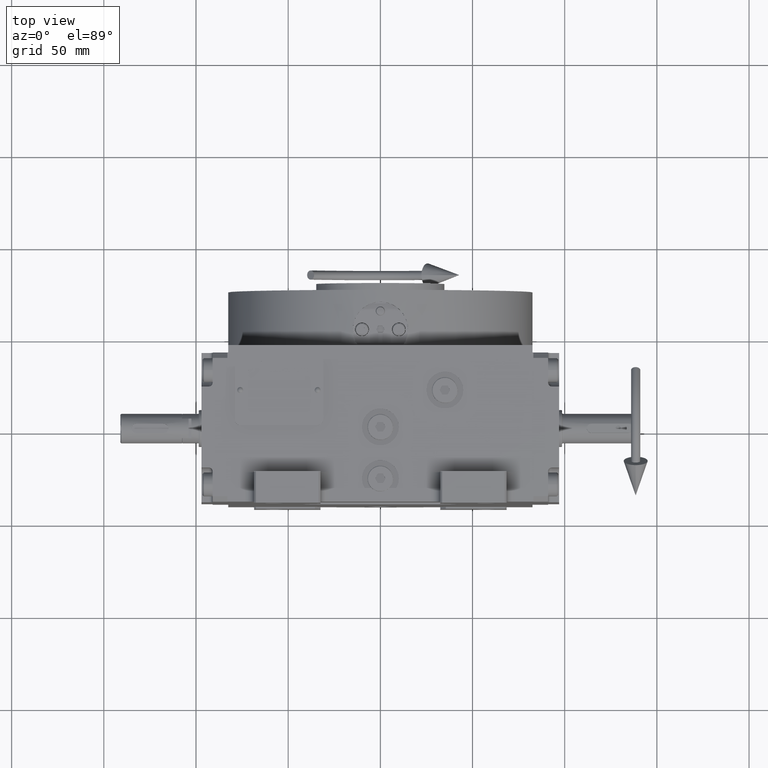
[diagram: clean part render]
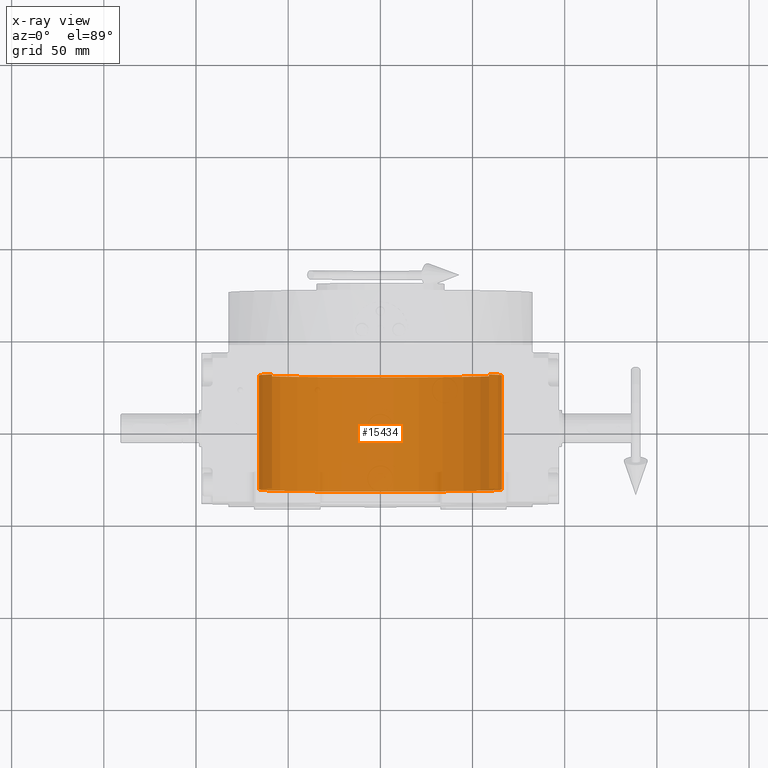
[diagram: x-ray — body ghosted, one internal face saturated and labeled with its STEP entity id]
A machine part, top view, then the same camera in x-ray: the body is ghosted and one INTERNAL B-rep face — a face not visible from any outside direction — is saturated and labeled: STEP entity #15434.
In plain terms, the highlighted cylindrical surface (partial cylindrical patch) has radius 66 mm, axis along (0, 1, 0).
Its self-contained STEP definition (entity closure, byte-faithful):
#1021 = VERTEX_POINT ( 'NONE', #10698 ) ;
#1100 = DIRECTION ( 'NONE',  ( 0.000000000000000000, 0.000000000000000000, 1.000000000000000000 ) ) ;
#1101 = CARTESIAN_POINT ( 'NONE',  ( 58.78775382679628336, 98.15000000000000568, 30.00000000000000000 ) ) ;
#2421 = EDGE_CURVE ( 'NONE', #62693, #1021, #29062, .T. ) ;
#2488 = EDGE_CURVE ( 'NONE', #10325, #1021, #4385, .T. ) ;
#3467 = CYLINDRICAL_SURFACE ( 'NONE', #45210, 66.00000000000000000 ) ;
#3875 = CARTESIAN_POINT ( 'NONE',  ( -58.78775382679628336, 98.15000000000000568, 30.00000000000000000 ) ) ;
#4385 = CIRCLE ( 'NONE', #45647, 66.00000000000000000 ) ;
#9567 = EDGE_LOOP ( 'NONE', ( #28745, #16947, #43727, #17152 ) ) ;
#10325 = VERTEX_POINT ( 'NONE', #40580 ) ;
#10471 = DIRECTION ( 'NONE',  ( -0.000000000000000000, 1.000000000000000000, -0.000000000000000000 ) ) ;
#10698 = CARTESIAN_POINT ( 'NONE',  ( -58.78775382679628336, -31.99999999999998579, 30.00000000000000000 ) ) ;
#11107 = CARTESIAN_POINT ( 'NONE',  ( 0.000000000000000000, 30.00000000000001421, 0.000000000000000000 ) ) ;
#11846 = EDGE_CURVE ( 'NONE', #30197, #62693, #19164, .T. ) ;
#12060 = CARTESIAN_POINT ( 'NONE',  ( -58.78775382679628336, 30.00000000000001421, 30.00000000000000000 ) ) ;
#15434 = ADVANCED_FACE ( 'NONE', ( #47379 ), #3467, .F. ) ;
#16947 = ORIENTED_EDGE ( 'NONE', *, *, #2488, .F. ) ;
#17152 = ORIENTED_EDGE ( 'NONE', *, *, #11846, .T. ) ;
#17216 = DIRECTION ( 'NONE',  ( -0.000000000000000000, 1.000000000000000000, -0.000000000000000000 ) ) ;
#17978 = CARTESIAN_POINT ( 'NONE',  ( 0.000000000000000000, 98.15000000000000568, 0.000000000000000000 ) ) ;
#19164 = CIRCLE ( 'NONE', #39807, 66.00000000000000000 ) ;
#28738 = CARTESIAN_POINT ( 'NONE',  ( 58.78775382679628336, 30.00000000000001421, 30.00000000000000000 ) ) ;
#28745 = ORIENTED_EDGE ( 'NONE', *, *, #2421, .T. ) ;
#29062 = LINE ( 'NONE', #3875, #29132 ) ;
#29132 = VECTOR ( 'NONE', #63006, 1000.000000000000000 ) ;
#30197 = VERTEX_POINT ( 'NONE', #28738 ) ;
#32069 = DIRECTION ( 'NONE',  ( 0.000000000000000000, 0.000000000000000000, 1.000000000000000000 ) ) ;
#35969 = DIRECTION ( 'NONE',  ( -0.000000000000000000, 1.000000000000000000, -0.000000000000000000 ) ) ;
#39807 = AXIS2_PLACEMENT_3D ( 'NONE', #11107, #10471, #1100 ) ;
#40580 = CARTESIAN_POINT ( 'NONE',  ( 58.78775382679628336, -31.99999999999998579, 30.00000000000000000 ) ) ;
#42542 = DIRECTION ( 'NONE',  ( -0.000000000000000000, 1.000000000000000000, -0.000000000000000000 ) ) ;
#43727 = ORIENTED_EDGE ( 'NONE', *, *, #45957, .T. ) ;
#45210 = AXIS2_PLACEMENT_3D ( 'NONE', #17978, #42542, #62273 ) ;
#45647 = AXIS2_PLACEMENT_3D ( 'NONE', #61506, #17216, #32069 ) ;
#45907 = VECTOR ( 'NONE', #35969, 1000.000000000000000 ) ;
#45957 = EDGE_CURVE ( 'NONE', #10325, #30197, #56041, .T. ) ;
#47379 = FACE_OUTER_BOUND ( 'NONE', #9567, .T. ) ;
#56041 = LINE ( 'NONE', #1101, #45907 ) ;
#61506 = CARTESIAN_POINT ( 'NONE',  ( 0.000000000000000000, -31.99999999999998579, 0.000000000000000000 ) ) ;
#62273 = DIRECTION ( 'NONE',  ( 0.000000000000000000, 0.000000000000000000, 1.000000000000000000 ) ) ;
#62693 = VERTEX_POINT ( 'NONE', #12060 ) ;
#63006 = DIRECTION ( 'NONE',  ( 0.000000000000000000, -1.000000000000000000, 0.000000000000000000 ) ) ;